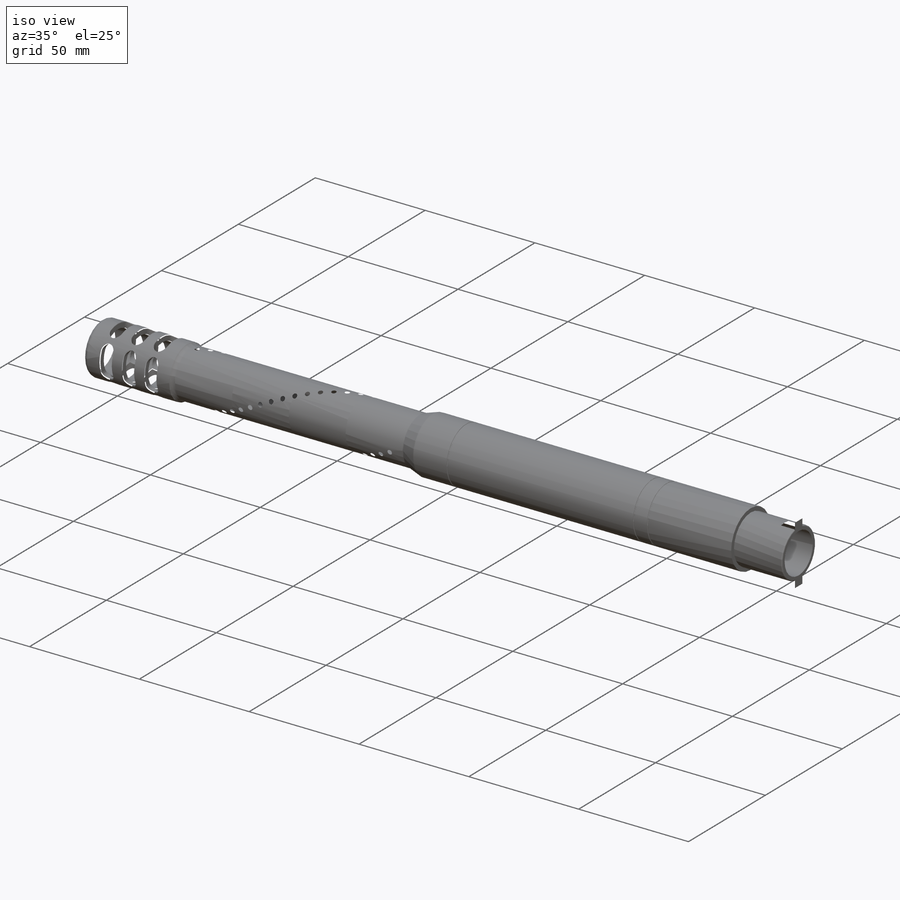
[diagram: iso view]
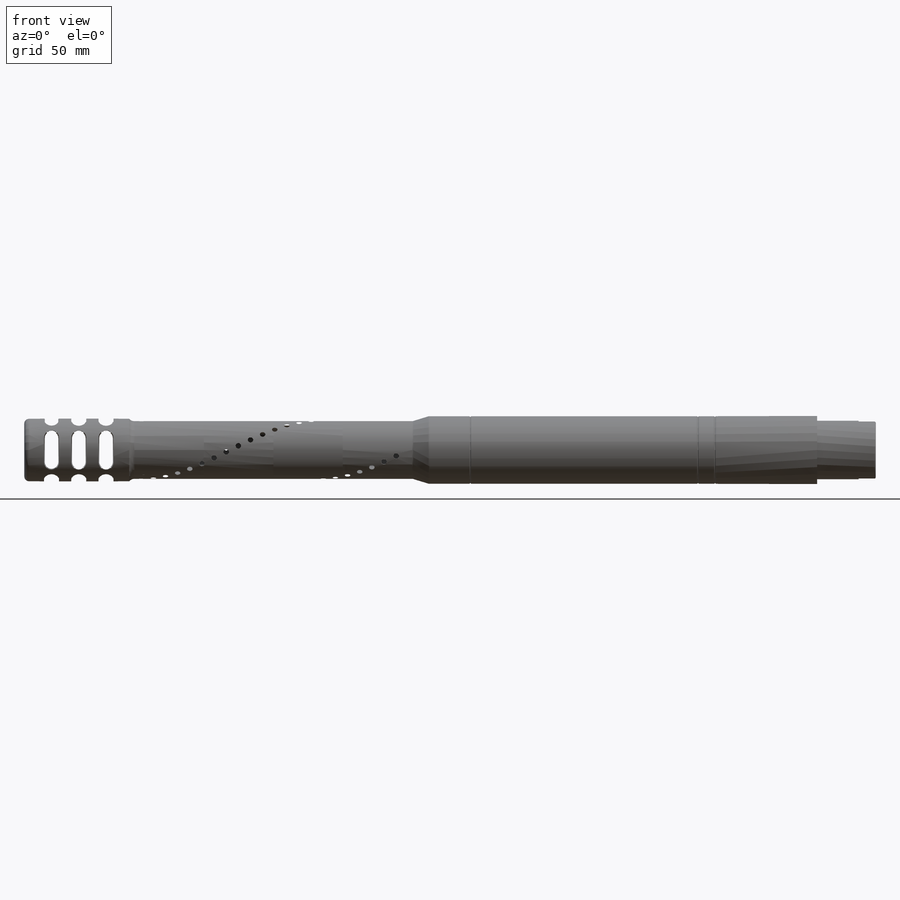
[diagram: front view]
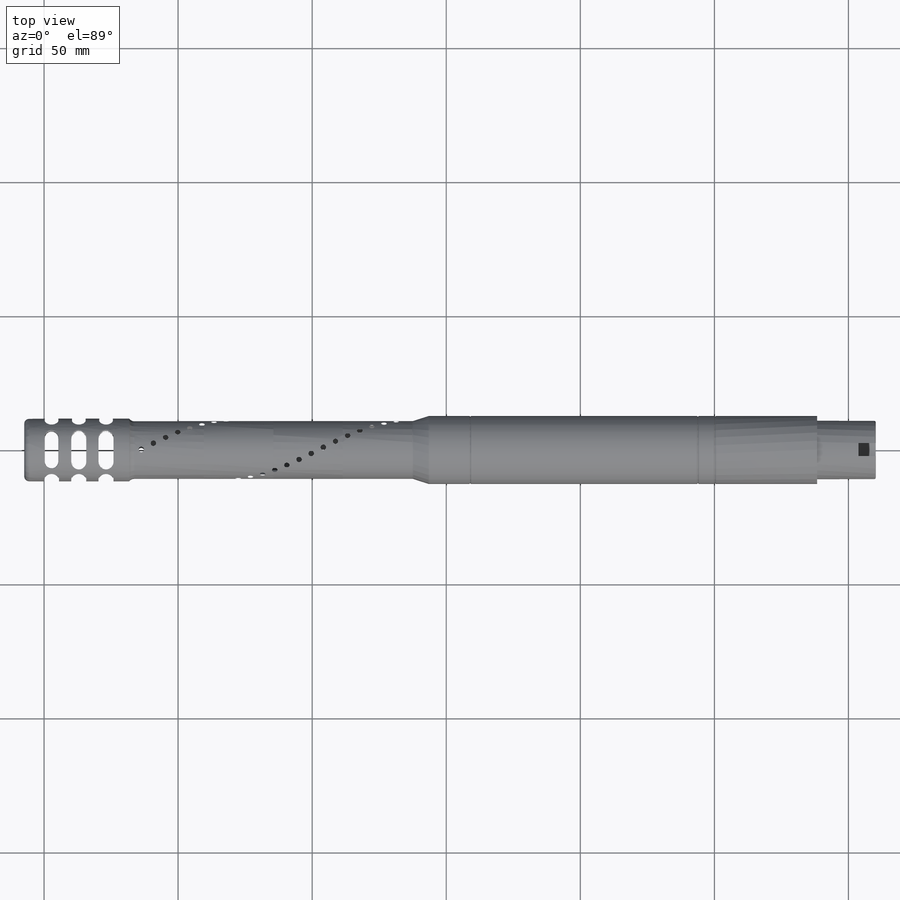
[diagram: top view]
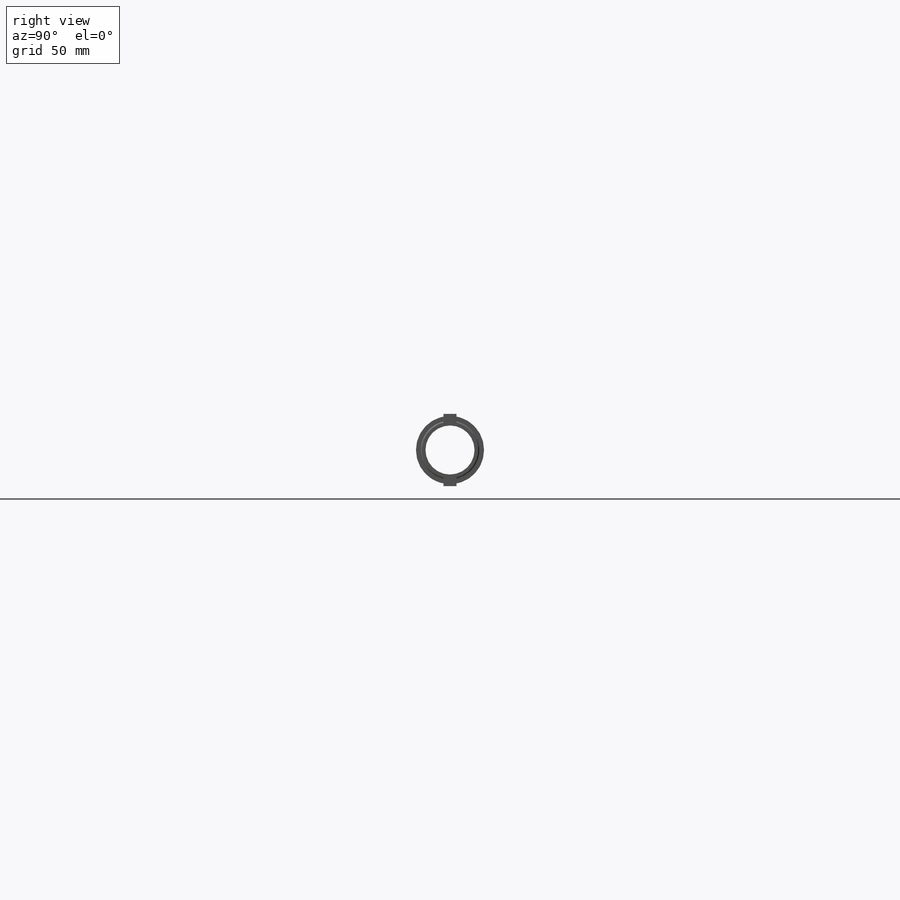
[diagram: right view]
SOLIDWORKS PART (.sldprt)
format: sldprt  version: not decoded by parser v0  size: 1,799,680 bytes
history: native  units: mm
features: sketch x10, fillet x5, plane x3, cut_extrude x2, pattern_circular x2, material x1, revolve x1, pattern_linear x1, cut_revolve x1, helix x1, extrude x1 (+13 scaffold rows collapsed)
feature tree (41):
  scaffold x13  (default folders/planes/origin — collapsed)
  material  "6061-T6 (SS)"
  sketch  "Sketch1"  dims[c1.D1=10.9093mm c1.D2=12.7mm c1.D3=21.844mm c1.D4=144.78mm c1.D5=10.7696mm c1.D6=111.76mm c1.D7=11.684mm c1.D8=39.116mm c1.D9=314.706mm c2.D2=11.684mm c2.D5=10.7696mm c2.D7=12.7mm c2.D9=9.144mm c2.D6=~105.740557mm c2.D10=1.9304mm c3.D10=~17.780742deg c3.D11=~6.321403mm]
  revolve  "Revolve1"  Angle=360deg
  sketch  "Sketch2"  dims[c1.D2=2.54mm c1.D1=10.16mm c2.D2=10.16mm c2.D3=~7.866553mm c2.D4=~12.946553mm c3.D3=13.97mm]
  cut_extrude  "Cut-Extrude1"  [1 undecoded]
  pattern_linear  "LPattern1"  Count1=3 Count2=1 Spacing1=10.16mm Spacing2=2.54mm
  pattern_circular  "CirPattern1"  Count=4 Angle=90deg
  fillet  "Fillet1"  Radius=1.778mm
  fillet  "Fillet2"  Radius=2.54mm
  fillet  "Fillet4"  Radius=1.27mm
  sketch  "Sketch3"  dims[D3=0.508mm D1=38.1mm D2=6.35mm D4=15.24mm]
  cut_revolve  "Cut-Revolve1"  Angle=360deg
  plane  "Plane1"
  sketch  "Sketch4"
  helix  "Helix/Spiral1"  Pitch=95.25mm
  fillet  "Fillet5"  Radius=0.508mm
  fillet  "Fillet6"  Radius=0.254mm
  sketch  "Sketch8"
  plane  "Plane2"
  sketch  "Sketch10"  dims[c1.D1=2.032mm c1.D2=2.54mm c1.D3=10.7696mm c1.D4=~78.682073mm c2.D4=30.0deg c2.D5=~13.578939mm c3.D5=27.0deg c3.D4=22.0]
  sketch  "Sketch11"  dims[c1.D1=~93.172548mm c2.D1=30.0deg c3.D1=5.08mm]
  plane  "Plane3"
  sketch  "Sketch13"  dims[c1.D1=2.032mm c1.D2=2.54mm c1.D3=10.7696mm c1.D4=22.0 c1.Wrap2=0.0 c2.D1=5.08mm]
  sketch  "Sketch14"  dims[D1=4.826mm D2=5.08mm]
  extrude  "Boss-Extrude1"  Depth=6.35mm
  pattern_circular  "CirPattern2"  Count=2 Angle=360deg
  sketch  "Sketch15"
  cut_extrude  "Cut-Extrude2"  Depth=6.35mm
decode coverage: 20 of 24 modeling features carry decoded parameters
note: ~ marks probable driven/reference dimensions
note: 1 parameter value undecoded
note: suppression state not decoded; provenance and decode notes live in map.json
